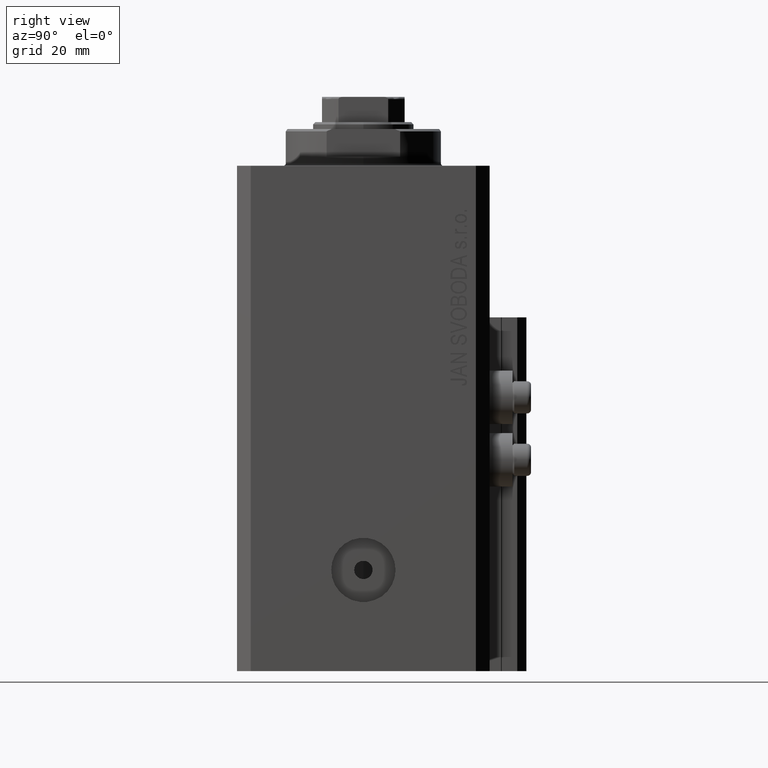
[diagram: clean part render]
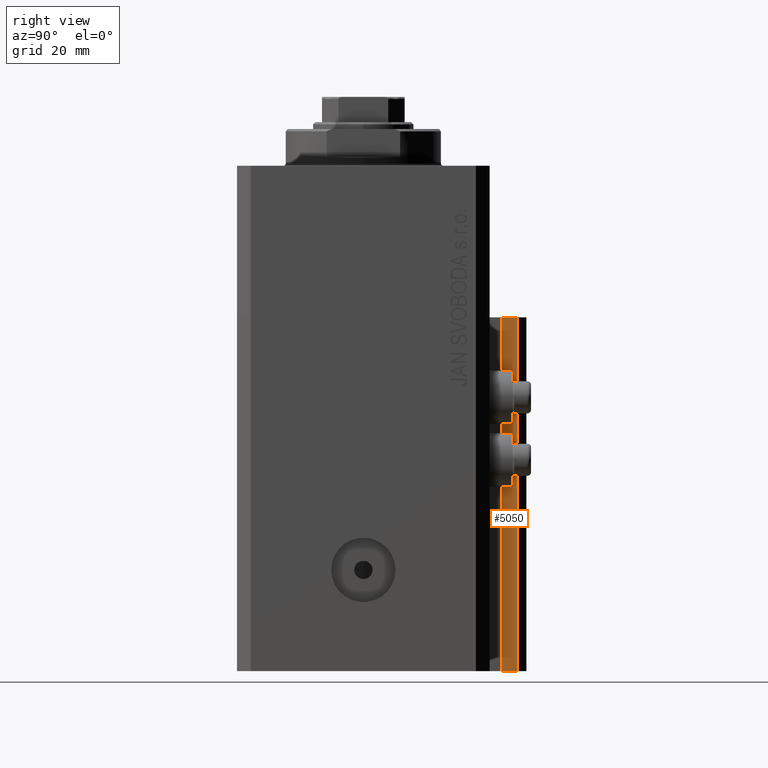
[diagram: same view with one face highlighted and labeled with its STEP entity id]
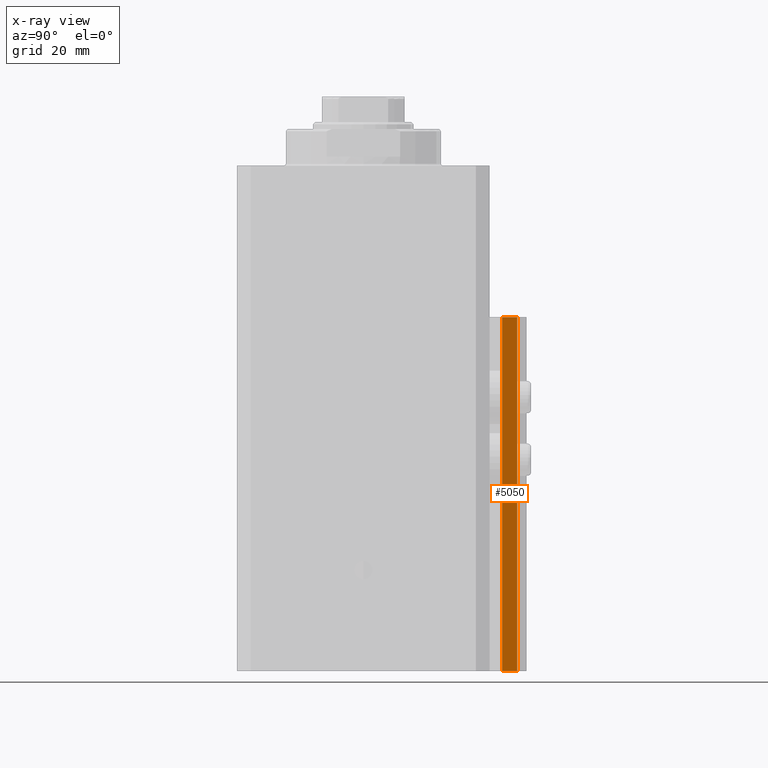
[diagram: x-ray of the same camera — body ghosted, the highlighted face saturated]
A machine part, right view. The second image highlights one B-rep face of the part: STEP entity #5050.
The next image is the same camera in x-ray: the body ghosted, the highlighted face saturated — about 0% of this face is hidden behind the body in this view.
In plain terms, the highlighted planar face has unit normal (1, 0, 0).
Its self-contained STEP definition (entity closure, byte-faithful):
#323 = VERTEX_POINT ( 'NONE', #4453 ) ;
#895 = DIRECTION ( 'NONE',  ( 1.000000000000000000, 5.256737805990335883E-16, -0.000000000000000000 ) ) ;
#1689 = LINE ( 'NONE', #9128, #27853 ) ;
#2695 = CARTESIAN_POINT ( 'NONE',  ( 12.00000000000000178, 30.20000000000002061, -110.0000000000000000 ) ) ;
#3118 = ORIENTED_EDGE ( 'NONE', *, *, #47211, .T. ) ;
#4441 = LINE ( 'NONE', #36774, #13160 ) ;
#4453 = CARTESIAN_POINT ( 'NONE',  ( 12.00000000000000178, 30.20000000000002061, -33.00000000000000000 ) ) ;
#4493 = PLANE ( 'NONE',  #41076 ) ;
#4571 = EDGE_CURVE ( 'NONE', #36067, #15091, #1689, .T. ) ;
#4664 = DIRECTION ( 'NONE',  ( 0.000000000000000000, 0.000000000000000000, 1.000000000000000000 ) ) ;
#5050 = ADVANCED_FACE ( 'NONE', ( #11896 ), #4493, .T. ) ;
#6066 = CARTESIAN_POINT ( 'NONE',  ( 12.00000000000000178, 30.20000000000002061, -110.0000000000000000 ) ) ;
#6618 = ORIENTED_EDGE ( 'NONE', *, *, #39972, .F. ) ;
#9128 = CARTESIAN_POINT ( 'NONE',  ( 12.00000000000000000, 33.50000000000001421, -110.0000000000000000 ) ) ;
#11896 = FACE_OUTER_BOUND ( 'NONE', #41327, .T. ) ;
#13160 = VECTOR ( 'NONE', #4664, 1000.000000000000000 ) ;
#15091 = VERTEX_POINT ( 'NONE', #17159 ) ;
#17159 = CARTESIAN_POINT ( 'NONE',  ( 12.00000000000000000, 33.50000000000001421, -33.00000000000000000 ) ) ;
#18059 = ORIENTED_EDGE ( 'NONE', *, *, #44731, .F. ) ;
#19105 = DIRECTION ( 'NONE',  ( -5.256737805990335883E-16, 1.000000000000000000, 0.000000000000000000 ) ) ;
#20480 = DIRECTION ( 'NONE',  ( -5.256737805990334897E-16, 1.000000000000000000, 0.000000000000000000 ) ) ;
#20717 = CARTESIAN_POINT ( 'NONE',  ( 12.00000000000000178, 30.20000000000002061, -110.0000000000000000 ) ) ;
#23732 = DIRECTION ( 'NONE',  ( 0.000000000000000000, 0.000000000000000000, 1.000000000000000000 ) ) ;
#25171 = DIRECTION ( 'NONE',  ( -5.256737805990334897E-16, 1.000000000000000000, 0.000000000000000000 ) ) ;
#27853 = VECTOR ( 'NONE', #23732, 1000.000000000000000 ) ;
#30896 = VECTOR ( 'NONE', #20480, 1000.000000000000000 ) ;
#32202 = LINE ( 'NONE', #20717, #30896 ) ;
#32644 = CARTESIAN_POINT ( 'NONE',  ( 12.00000000000000000, 33.50000000000001421, -110.0000000000000000 ) ) ;
#35223 = LINE ( 'NONE', #35466, #45215 ) ;
#35466 = CARTESIAN_POINT ( 'NONE',  ( 12.00000000000000178, 30.20000000000002061, -33.00000000000000000 ) ) ;
#36067 = VERTEX_POINT ( 'NONE', #32644 ) ;
#36774 = CARTESIAN_POINT ( 'NONE',  ( 12.00000000000000178, 30.20000000000002061, -110.0000000000000000 ) ) ;
#39356 = ORIENTED_EDGE ( 'NONE', *, *, #4571, .T. ) ;
#39972 = EDGE_CURVE ( 'NONE', #43774, #323, #4441, .T. ) ;
#41076 = AXIS2_PLACEMENT_3D ( 'NONE', #6066, #895, #19105 ) ;
#41327 = EDGE_LOOP ( 'NONE', ( #18059, #6618, #3118, #39356 ) ) ;
#43774 = VERTEX_POINT ( 'NONE', #2695 ) ;
#44731 = EDGE_CURVE ( 'NONE', #323, #15091, #35223, .T. ) ;
#45215 = VECTOR ( 'NONE', #25171, 1000.000000000000000 ) ;
#47211 = EDGE_CURVE ( 'NONE', #43774, #36067, #32202, .T. ) ;